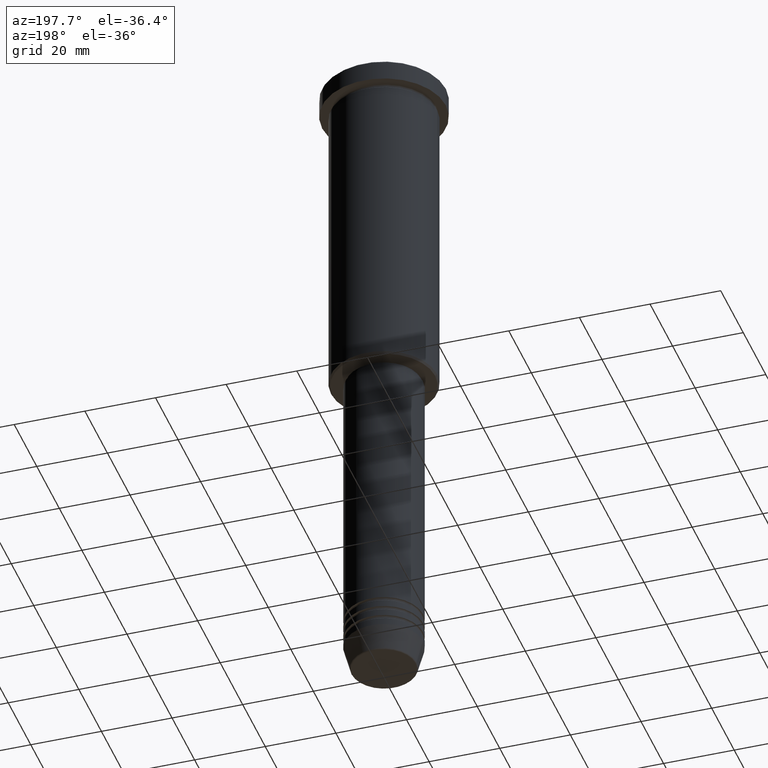
[diagram: clean part render]
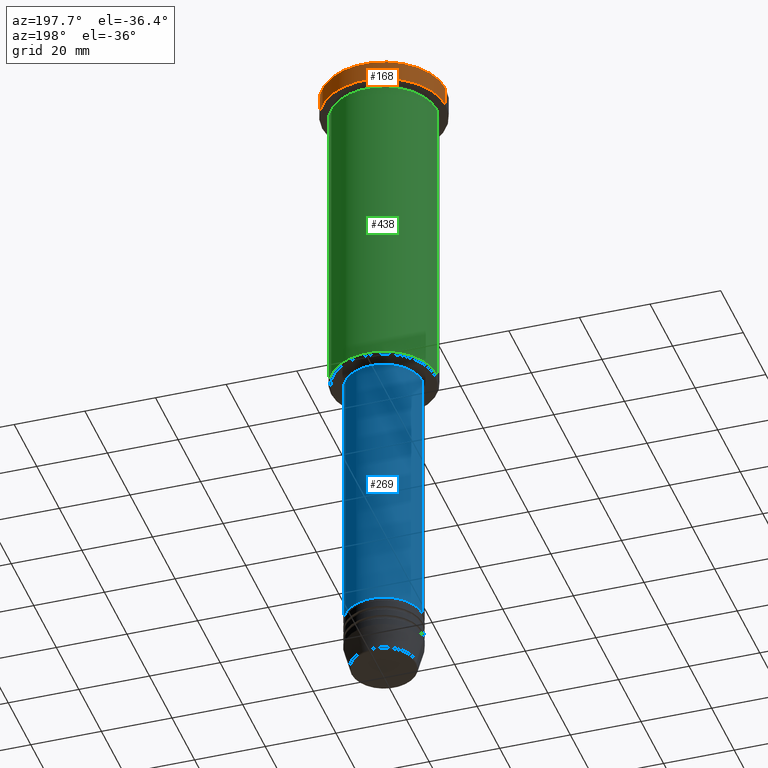
[diagram: same view with three faces highlighted in distinct colors, each labeled with its STEP entity id]
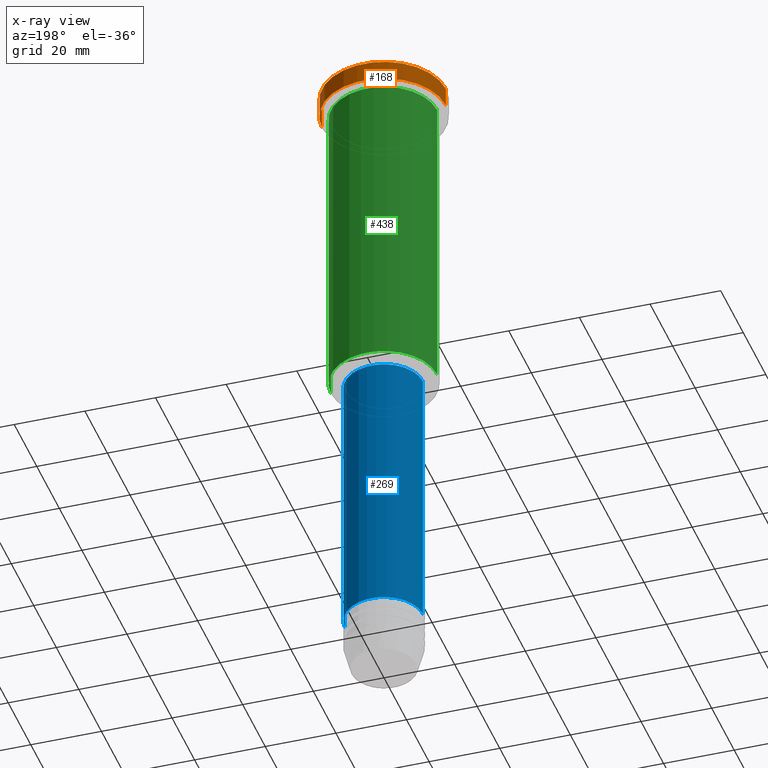
[diagram: x-ray of the same camera — body ghosted, the three highlighted faces saturated]
A machine part, auxiliary view with three faces highlighted in distinct colors.
The next image is the same camera in x-ray (body ghosted, the three faces saturated) — at least one of them is partly hidden behind the body in this view.
Their STEP definitions:

[orange] entity #168 — the highlighted cylindrical surface (partial cylindrical patch) has radius 17.5 mm, axis along (-0, -0, 1).
#54 = DIRECTION ( 'NONE',  ( 1.000000000000000000, 0.000000000000000000, 0.000000000000000000 ) ) ;
#92 = CARTESIAN_POINT ( 'NONE',  ( -17.50000000000000000, 2.143131898507868248E-15, -0.5000000000000003331 ) ) ;
#168 = ADVANCED_FACE ( 'NONE', ( #437 ), #240, .T. ) ;
#187 = CARTESIAN_POINT ( 'NONE',  ( 0.000000000000000000, 0.000000000000000000, -5.999999999999995559 ) ) ;
#203 = LINE ( 'NONE', #656, #378 ) ;
#240 = CYLINDRICAL_SURFACE ( 'NONE', #261, 17.50000000000000000 ) ;
#261 = AXIS2_PLACEMENT_3D ( 'NONE', #607, #514, #54 ) ;
#279 = DIRECTION ( 'NONE',  ( 1.000000000000000000, 0.000000000000000000, 0.000000000000000000 ) ) ;
#280 = VERTEX_POINT ( 'NONE', #290 ) ;
#290 = CARTESIAN_POINT ( 'NONE',  ( -17.50000000000000000, 2.143131898507868248E-15, -5.999999999999995559 ) ) ;
#314 = CIRCLE ( 'NONE', #705, 17.50000000000000000 ) ;
#335 = VECTOR ( 'NONE', #1049, 1000.000000000000000 ) ;
#368 = ORIENTED_EDGE ( 'NONE', *, *, #383, .T. ) ;
#378 = VECTOR ( 'NONE', #848, 1000.000000000000000 ) ;
#383 = EDGE_CURVE ( 'NONE', #455, #280, #887, .T. ) ;
#430 = LINE ( 'NONE', #787, #335 ) ;
#437 = FACE_OUTER_BOUND ( 'NONE', #512, .T. ) ;
#450 = AXIS2_PLACEMENT_3D ( 'NONE', #187, #908, #279 ) ;
#455 = VERTEX_POINT ( 'NONE', #934 ) ;
#495 = CARTESIAN_POINT ( 'NONE',  ( 17.50000000000000000, 0.000000000000000000, -0.5000000000000003331 ) ) ;
#500 = EDGE_CURVE ( 'NONE', #551, #596, #314, .T. ) ;
#512 = EDGE_LOOP ( 'NONE', ( #368, #715, #784, #898 ) ) ;
#514 = DIRECTION ( 'NONE',  ( -0.000000000000000000, -0.000000000000000000, 1.000000000000000000 ) ) ;
#551 = VERTEX_POINT ( 'NONE', #92 ) ;
#596 = VERTEX_POINT ( 'NONE', #495 ) ;
#607 = CARTESIAN_POINT ( 'NONE',  ( 0.000000000000000000, 0.000000000000000000, 0.000000000000000000 ) ) ;
#656 = CARTESIAN_POINT ( 'NONE',  ( -17.50000000000000000, 2.143131898507868248E-15, 0.000000000000000000 ) ) ;
#705 = AXIS2_PLACEMENT_3D ( 'NONE', #771, #1158, #1153 ) ;
#715 = ORIENTED_EDGE ( 'NONE', *, *, #1138, .T. ) ;
#771 = CARTESIAN_POINT ( 'NONE',  ( 0.000000000000000000, 0.000000000000000000, -0.5000000000000003331 ) ) ;
#782 = EDGE_CURVE ( 'NONE', #455, #596, #430, .T. ) ;
#784 = ORIENTED_EDGE ( 'NONE', *, *, #500, .T. ) ;
#787 = CARTESIAN_POINT ( 'NONE',  ( 17.50000000000000000, 0.000000000000000000, 0.000000000000000000 ) ) ;
#848 = DIRECTION ( 'NONE',  ( -0.000000000000000000, -0.000000000000000000, 1.000000000000000000 ) ) ;
#887 = CIRCLE ( 'NONE', #450, 17.50000000000000000 ) ;
#898 = ORIENTED_EDGE ( 'NONE', *, *, #782, .F. ) ;
#908 = DIRECTION ( 'NONE',  ( -0.000000000000000000, -0.000000000000000000, 1.000000000000000000 ) ) ;
#934 = CARTESIAN_POINT ( 'NONE',  ( 17.50000000000000000, 0.000000000000000000, -5.999999999999995559 ) ) ;
#1049 = DIRECTION ( 'NONE',  ( -0.000000000000000000, -0.000000000000000000, 1.000000000000000000 ) ) ;
#1138 = EDGE_CURVE ( 'NONE', #280, #551, #203, .T. ) ;
#1153 = DIRECTION ( 'NONE',  ( 1.000000000000000000, 0.000000000000000000, 0.000000000000000000 ) ) ;
#1158 = DIRECTION ( 'NONE',  ( 0.000000000000000000, 0.000000000000000000, -1.000000000000000000 ) ) ;

[blue] entity #269 — the highlighted cylindrical surface (partial cylindrical patch) has radius 11 mm, axis along (-0, -0, 1).
#15 = DIRECTION ( 'NONE',  ( 1.000000000000000000, 0.000000000000000000, 0.000000000000000000 ) ) ;
#57 = EDGE_CURVE ( 'NONE', #502, #144, #163, .T. ) ;
#74 = DIRECTION ( 'NONE',  ( -0.000000000000000000, -0.000000000000000000, 1.000000000000000000 ) ) ;
#120 = VECTOR ( 'NONE', #74, 1000.000000000000000 ) ;
#131 = DIRECTION ( 'NONE',  ( -0.000000000000000000, -0.000000000000000000, 1.000000000000000000 ) ) ;
#144 = VERTEX_POINT ( 'NONE', #469 ) ;
#163 = CIRCLE ( 'NONE', #546, 11.00000000000000000 ) ;
#171 = CARTESIAN_POINT ( 'NONE',  ( -11.00000000000000000, 1.347111479062088405E-15, 0.000000000000000000 ) ) ;
#181 = EDGE_LOOP ( 'NONE', ( #1133, #576, #890, #264 ) ) ;
#237 = AXIS2_PLACEMENT_3D ( 'NONE', #972, #745, #15 ) ;
#264 = ORIENTED_EDGE ( 'NONE', *, *, #615, .F. ) ;
#269 = ADVANCED_FACE ( 'NONE', ( #882 ), #614, .T. ) ;
#275 = CARTESIAN_POINT ( 'NONE',  ( -11.00000000000000000, 1.347111479062088405E-15, -97.00000000000002842 ) ) ;
#343 = CARTESIAN_POINT ( 'NONE',  ( 11.00000000000000000, 0.000000000000000000, -175.0000000000000000 ) ) ;
#367 = EDGE_CURVE ( 'NONE', #920, #429, #629, .T. ) ;
#399 = DIRECTION ( 'NONE',  ( -0.000000000000000000, -0.000000000000000000, 1.000000000000000000 ) ) ;
#407 = DIRECTION ( 'NONE',  ( -0.000000000000000000, -0.000000000000000000, 1.000000000000000000 ) ) ;
#429 = VERTEX_POINT ( 'NONE', #275 ) ;
#469 = CARTESIAN_POINT ( 'NONE',  ( -11.00000000000000000, 1.347111479062088405E-15, -175.0000000000000000 ) ) ;
#502 = VERTEX_POINT ( 'NONE', #343 ) ;
#546 = AXIS2_PLACEMENT_3D ( 'NONE', #702, #407, #1117 ) ;
#561 = CARTESIAN_POINT ( 'NONE',  ( 11.00000000000000000, 0.000000000000000000, 0.000000000000000000 ) ) ;
#576 = ORIENTED_EDGE ( 'NONE', *, *, #967, .T. ) ;
#614 = CYLINDRICAL_SURFACE ( 'NONE', #237, 11.00000000000000000 ) ;
#615 = EDGE_CURVE ( 'NONE', #502, #920, #861, .T. ) ;
#624 = AXIS2_PLACEMENT_3D ( 'NONE', #1039, #131, #694 ) ;
#625 = CARTESIAN_POINT ( 'NONE',  ( 11.00000000000000000, 0.000000000000000000, -97.00000000000002842 ) ) ;
#629 = CIRCLE ( 'NONE', #624, 11.00000000000000000 ) ;
#694 = DIRECTION ( 'NONE',  ( 1.000000000000000000, 0.000000000000000000, 0.000000000000000000 ) ) ;
#702 = CARTESIAN_POINT ( 'NONE',  ( 0.000000000000000000, 0.000000000000000000, -175.0000000000000000 ) ) ;
#745 = DIRECTION ( 'NONE',  ( -0.000000000000000000, -0.000000000000000000, 1.000000000000000000 ) ) ;
#747 = LINE ( 'NONE', #171, #120 ) ;
#861 = LINE ( 'NONE', #561, #1072 ) ;
#882 = FACE_OUTER_BOUND ( 'NONE', #181, .T. ) ;
#890 = ORIENTED_EDGE ( 'NONE', *, *, #367, .F. ) ;
#920 = VERTEX_POINT ( 'NONE', #625 ) ;
#967 = EDGE_CURVE ( 'NONE', #144, #429, #747, .T. ) ;
#972 = CARTESIAN_POINT ( 'NONE',  ( 0.000000000000000000, 0.000000000000000000, 0.000000000000000000 ) ) ;
#1039 = CARTESIAN_POINT ( 'NONE',  ( 0.000000000000000000, 0.000000000000000000, -97.00000000000002842 ) ) ;
#1072 = VECTOR ( 'NONE', #399, 1000.000000000000000 ) ;
#1117 = DIRECTION ( 'NONE',  ( 1.000000000000000000, 0.000000000000000000, 0.000000000000000000 ) ) ;
#1133 = ORIENTED_EDGE ( 'NONE', *, *, #57, .T. ) ;

[green] entity #438 — the highlighted cylindrical surface (partial cylindrical patch) has radius 15 mm, axis along (-0, -0, 1).
#19 = EDGE_CURVE ( 'NONE', #781, #1150, #1167, .T. ) ;
#58 = CARTESIAN_POINT ( 'NONE',  ( 15.00000000000000000, 0.000000000000000000, -95.49999999999997158 ) ) ;
#66 = ORIENTED_EDGE ( 'NONE', *, *, #774, .F. ) ;
#117 = AXIS2_PLACEMENT_3D ( 'NONE', #583, #658, #775 ) ;
#124 = ORIENTED_EDGE ( 'NONE', *, *, #1159, .F. ) ;
#164 = VERTEX_POINT ( 'NONE', #58 ) ;
#284 = ORIENTED_EDGE ( 'NONE', *, *, #424, .T. ) ;
#313 = DIRECTION ( 'NONE',  ( -0.000000000000000000, -0.000000000000000000, 1.000000000000000000 ) ) ;
#353 = CIRCLE ( 'NONE', #1019, 15.00000000000000000 ) ;
#356 = DIRECTION ( 'NONE',  ( -0.000000000000000000, -0.000000000000000000, 1.000000000000000000 ) ) ;
#401 = CYLINDRICAL_SURFACE ( 'NONE', #117, 15.00000000000000000 ) ;
#414 = VECTOR ( 'NONE', #885, 1000.000000000000000 ) ;
#424 = EDGE_CURVE ( 'NONE', #164, #781, #353, .T. ) ;
#438 = ADVANCED_FACE ( 'NONE', ( #863 ), #401, .T. ) ;
#440 = ORIENTED_EDGE ( 'NONE', *, *, #19, .T. ) ;
#492 = DIRECTION ( 'NONE',  ( 1.000000000000000000, 0.000000000000000000, 0.000000000000000000 ) ) ;
#518 = EDGE_LOOP ( 'NONE', ( #284, #440, #124, #66 ) ) ;
#524 = CARTESIAN_POINT ( 'NONE',  ( 15.00000000000000000, 0.000000000000000000, 0.000000000000000000 ) ) ;
#578 = CARTESIAN_POINT ( 'NONE',  ( 0.000000000000000000, 0.000000000000000000, -6.999999999999995559 ) ) ;
#583 = CARTESIAN_POINT ( 'NONE',  ( 0.000000000000000000, 0.000000000000000000, 0.000000000000000000 ) ) ;
#611 = CARTESIAN_POINT ( 'NONE',  ( -15.00000000000000000, 1.836970198721029589E-15, -95.49999999999997158 ) ) ;
#658 = DIRECTION ( 'NONE',  ( -0.000000000000000000, -0.000000000000000000, 1.000000000000000000 ) ) ;
#676 = CARTESIAN_POINT ( 'NONE',  ( -15.00000000000000000, 1.836970198721029589E-15, -6.999999999999995559 ) ) ;
#709 = VECTOR ( 'NONE', #356, 1000.000000000000000 ) ;
#733 = AXIS2_PLACEMENT_3D ( 'NONE', #578, #1010, #492 ) ;
#774 = EDGE_CURVE ( 'NONE', #164, #788, #875, .T. ) ;
#775 = DIRECTION ( 'NONE',  ( 1.000000000000000000, 0.000000000000000000, 0.000000000000000000 ) ) ;
#781 = VERTEX_POINT ( 'NONE', #611 ) ;
#788 = VERTEX_POINT ( 'NONE', #1139 ) ;
#863 = FACE_OUTER_BOUND ( 'NONE', #518, .T. ) ;
#875 = LINE ( 'NONE', #524, #414 ) ;
#885 = DIRECTION ( 'NONE',  ( -0.000000000000000000, -0.000000000000000000, 1.000000000000000000 ) ) ;
#902 = CARTESIAN_POINT ( 'NONE',  ( 0.000000000000000000, 0.000000000000000000, -95.49999999999997158 ) ) ;
#1010 = DIRECTION ( 'NONE',  ( -0.000000000000000000, -0.000000000000000000, 1.000000000000000000 ) ) ;
#1019 = AXIS2_PLACEMENT_3D ( 'NONE', #902, #313, #1163 ) ;
#1037 = CIRCLE ( 'NONE', #733, 15.00000000000000000 ) ;
#1084 = CARTESIAN_POINT ( 'NONE',  ( -15.00000000000000000, 1.836970198721029589E-15, 0.000000000000000000 ) ) ;
#1139 = CARTESIAN_POINT ( 'NONE',  ( 15.00000000000000000, 0.000000000000000000, -6.999999999999995559 ) ) ;
#1150 = VERTEX_POINT ( 'NONE', #676 ) ;
#1159 = EDGE_CURVE ( 'NONE', #788, #1150, #1037, .T. ) ;
#1163 = DIRECTION ( 'NONE',  ( -1.000000000000000000, 0.000000000000000000, 0.000000000000000000 ) ) ;
#1167 = LINE ( 'NONE', #1084, #709 ) ;